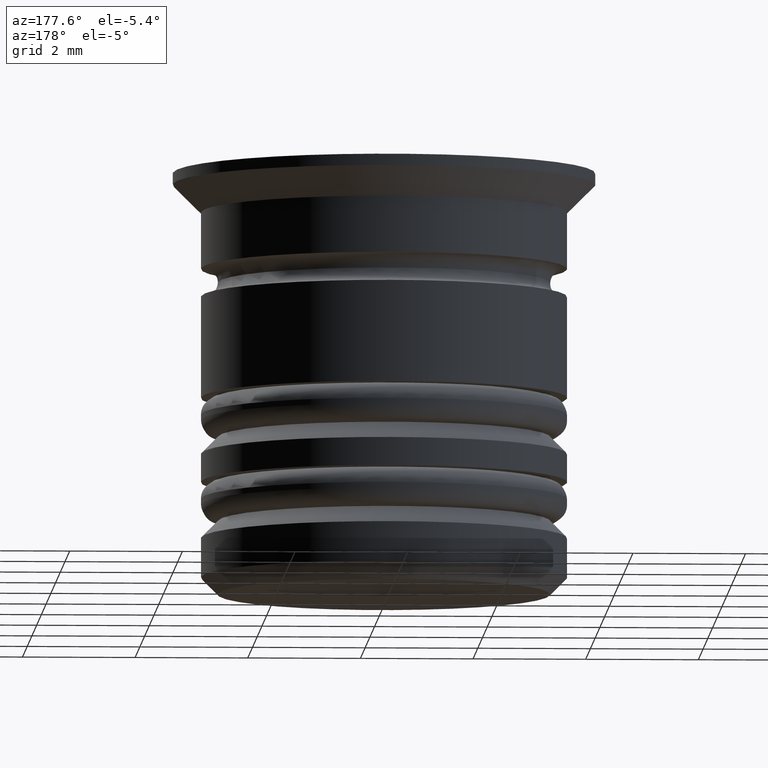
[diagram: clean part render]
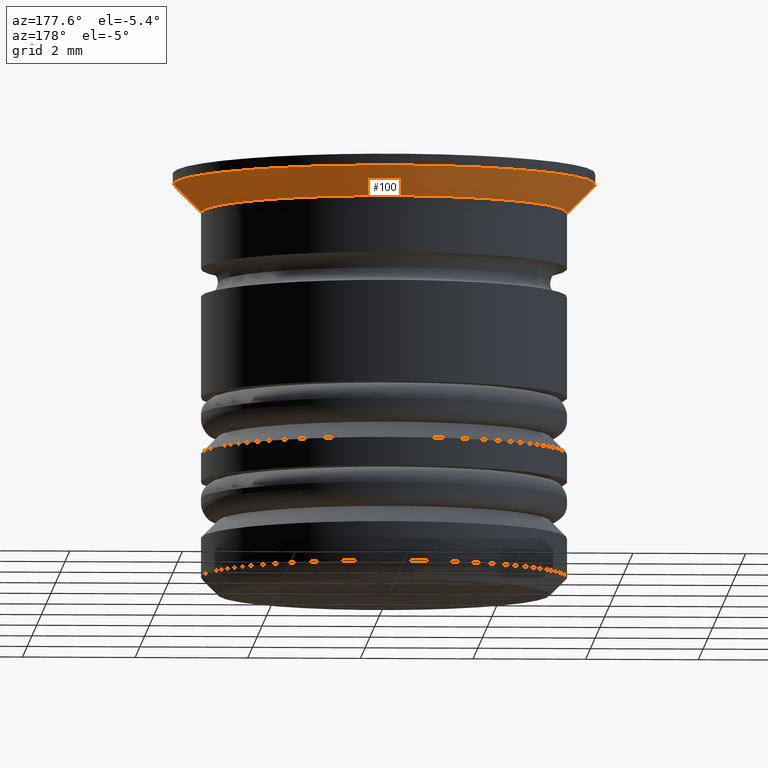
[diagram: same view with one face highlighted and labeled with its STEP entity id]
A machine part, auxiliary view. The second image highlights one B-rep face of the part: STEP entity #100.
In plain terms, the highlighted conical surface has half-angle 45 deg.
Its self-contained STEP definition (entity closure, byte-faithful):
#20 = EDGE_CURVE ( 'NONE', #657, #1087, #497, .T. ) ;
#44 = VECTOR ( 'NONE', #819, 1000.000000000000000 ) ;
#53 = DIRECTION ( 'NONE',  ( 0.7071067811865487940, 0.000000000000000000, 0.7071067811865463515 ) ) ;
#74 = EDGE_CURVE ( 'NONE', #1087, #1531, #1220, .T. ) ;
#78 = CONICAL_SURFACE ( 'NONE', #1107, 3.750000000000000000, 0.7853981633974500554 ) ;
#100 = ADVANCED_FACE ( 'NONE', ( #1709 ), #78, .T. ) ;
#189 = CARTESIAN_POINT ( 'NONE',  ( 0.000000000000000000, 0.000000000000000000, -0.1999999999999964029 ) ) ;
#220 = DIRECTION ( 'NONE',  ( 1.000000000000000000, 0.000000000000000000, 0.000000000000000000 ) ) ;
#278 = AXIS2_PLACEMENT_3D ( 'NONE', #189, #764, #1315 ) ;
#297 = DIRECTION ( 'NONE',  ( 1.000000000000000000, 0.000000000000000000, 0.000000000000000000 ) ) ;
#301 = EDGE_CURVE ( 'NONE', #651, #1531, #1082, .T. ) ;
#341 = ORIENTED_EDGE ( 'NONE', *, *, #74, .T. ) ;
#357 = CARTESIAN_POINT ( 'NONE',  ( 0.000000000000000000, 0.000000000000000000, -0.6999999999999999556 ) ) ;
#367 = DIRECTION ( 'NONE',  ( -0.000000000000000000, -0.000000000000000000, 1.000000000000000000 ) ) ;
#497 = CIRCLE ( 'NONE', #707, 3.249999999999999112 ) ;
#583 = ORIENTED_EDGE ( 'NONE', *, *, #605, .F. ) ;
#605 = EDGE_CURVE ( 'NONE', #657, #651, #1034, .T. ) ;
#651 = VERTEX_POINT ( 'NONE', #1767 ) ;
#657 = VERTEX_POINT ( 'NONE', #787 ) ;
#707 = AXIS2_PLACEMENT_3D ( 'NONE', #357, #367, #220 ) ;
#712 = VECTOR ( 'NONE', #53, 1000.000000000000000 ) ;
#764 = DIRECTION ( 'NONE',  ( -0.000000000000000000, -0.000000000000000000, 1.000000000000000000 ) ) ;
#787 = CARTESIAN_POINT ( 'NONE',  ( 3.249999999999999112, 0.000000000000000000, -0.6999999999999999556 ) ) ;
#819 = DIRECTION ( 'NONE',  ( -0.7071067811865487940, 8.659560562354950115E-17, 0.7071067811865463515 ) ) ;
#1010 = CARTESIAN_POINT ( 'NONE',  ( 0.000000000000000000, 0.000000000000000000, -0.1999999999999964029 ) ) ;
#1034 = LINE ( 'NONE', #1583, #712 ) ;
#1059 = EDGE_LOOP ( 'NONE', ( #1380, #341, #1193, #583 ) ) ;
#1082 = CIRCLE ( 'NONE', #278, 3.750000000000000000 ) ;
#1087 = VERTEX_POINT ( 'NONE', #1096 ) ;
#1096 = CARTESIAN_POINT ( 'NONE',  ( -3.249999999999999112, 3.980102097228896752E-16, -0.6999999999999999556 ) ) ;
#1107 = AXIS2_PLACEMENT_3D ( 'NONE', #1010, #1148, #297 ) ;
#1148 = DIRECTION ( 'NONE',  ( -0.000000000000000000, -0.000000000000000000, 1.000000000000000000 ) ) ;
#1193 = ORIENTED_EDGE ( 'NONE', *, *, #301, .F. ) ;
#1220 = LINE ( 'NONE', #1364, #44 ) ;
#1315 = DIRECTION ( 'NONE',  ( -1.000000000000000000, 0.000000000000000000, 0.000000000000000000 ) ) ;
#1364 = CARTESIAN_POINT ( 'NONE',  ( -3.750000000000000000, 4.592425496802573972E-16, -0.1999999999999964029 ) ) ;
#1380 = ORIENTED_EDGE ( 'NONE', *, *, #20, .T. ) ;
#1531 = VERTEX_POINT ( 'NONE', #1795 ) ;
#1583 = CARTESIAN_POINT ( 'NONE',  ( 3.750000000000000000, 0.000000000000000000, -0.1999999999999964029 ) ) ;
#1709 = FACE_OUTER_BOUND ( 'NONE', #1059, .T. ) ;
#1767 = CARTESIAN_POINT ( 'NONE',  ( 3.750000000000000000, 0.000000000000000000, -0.1999999999999964029 ) ) ;
#1795 = CARTESIAN_POINT ( 'NONE',  ( -3.750000000000000000, 4.592425496802573972E-16, -0.1999999999999964029 ) ) ;